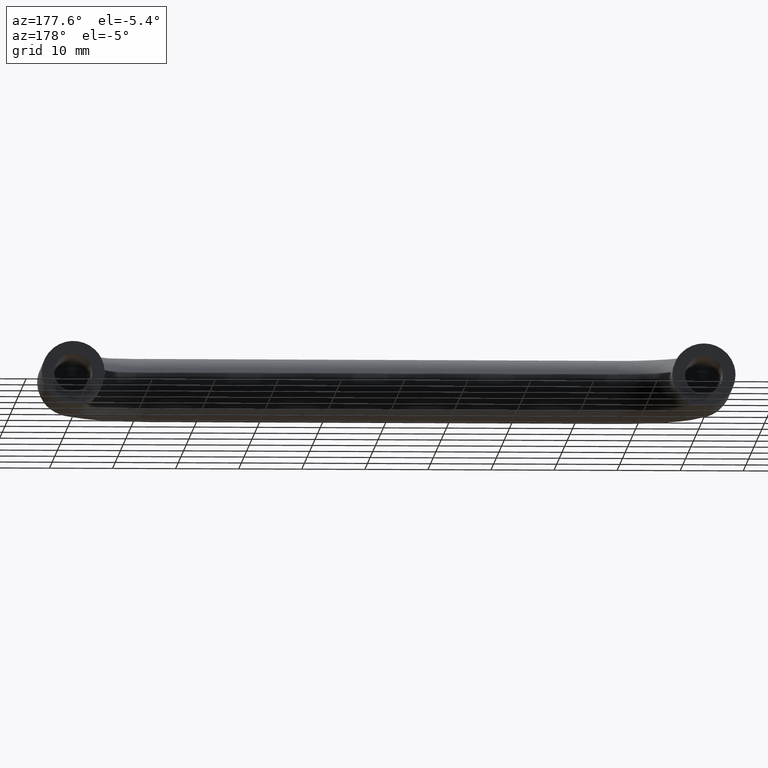
[diagram: clean part render]
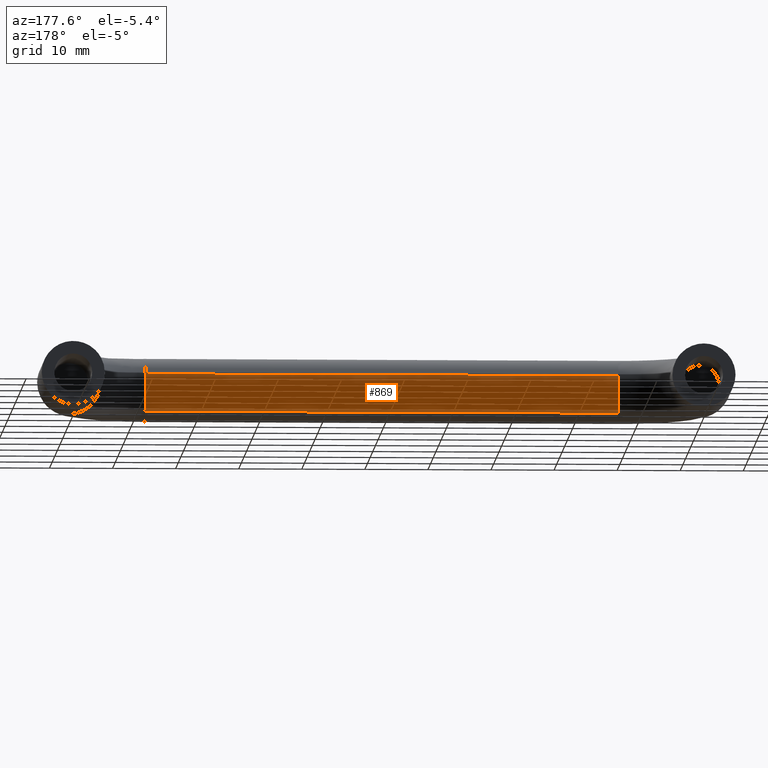
[diagram: same view with one face highlighted and labeled with its STEP entity id]
A machine part, auxiliary view. The second image highlights one B-rep face of the part: STEP entity #869.
In plain terms, the highlighted face is a freeform B-spline surface patch.
Its self-contained STEP definition (entity closure, byte-faithful):
#650=CARTESIAN_POINT('',(87.500000000000000,-25.521972536825938,2.224245948419135));
#651=VERTEX_POINT('',#650);
#669=CARTESIAN_POINT('',(12.499999999942640,-25.521972536863931,2.224245948398652));
#670=VERTEX_POINT('',#669);
#671=CARTESIAN_POINT('',(12.499999999942640,-25.521972536863931,2.224245948398652));
#672=CARTESIAN_POINT('',(87.500000000000000,-25.521972536825938,2.224245948419135));
#673=QUASI_UNIFORM_CURVE('',1,(#671,#672),.UNSPECIFIED.,.F.,.U.);
#674=EDGE_CURVE('',#670,#651,#673,.T.);
#723=CARTESIAN_POINT('',(12.500000000000000,-26.558228211156390,-3.626872889076486));
#724=VERTEX_POINT('',#723);
#740=CARTESIAN_POINT('',(87.500000000089756,-26.558227491804399,-3.626872206390019));
#741=VERTEX_POINT('',#740);
#742=CARTESIAN_POINT('',(12.500000000000000,-26.558228211156390,-3.626872889076486));
#743=CARTESIAN_POINT('',(87.500000000089756,-26.558227491804399,-3.626872206390019));
#744=QUASI_UNIFORM_CURVE('',1,(#742,#743),.UNSPECIFIED.,.F.,.U.);
#745=EDGE_CURVE('',#724,#741,#744,.T.);
#795=CARTESIAN_POINT('',(10.624999999436810,-26.558227121531232,-3.626871855061437));
#796=CARTESIAN_POINT('',(10.624999999436808,-23.878708249008778,-1.084103389193821));
#797=CARTESIAN_POINT('',(10.624999999436806,-25.521972536820858,2.224245948408881));
#798=CARTESIAN_POINT('',(89.421875000305576,-26.558227121531221,-3.626871855061437));
#799=CARTESIAN_POINT('',(89.421875000305576,-23.878708249008763,-1.084103389193821));
#800=CARTESIAN_POINT('',(89.421875000305562,-25.521972536820837,2.224245948408881));
#808=(BOUNDED_SURFACE()B_SPLINE_SURFACE(2,1,((#795,#798),(#796,#799),(#797,#800)),.UNSPECIFIED.,.F.,.F.,.U.)B_SPLINE_SURFACE_WITH_KNOTS((3,3),(2,2),(0.0,6.582243619433233),(0.0,78.796875000868766),.UNSPECIFIED.)GEOMETRIC_REPRESENTATION_ITEM()RATIONAL_B_SPLINE_SURFACE(((1.0,1.0),(0.765685424949238,0.765685424949238),(0.906274169979695,0.906274169979695)))REPRESENTATION_ITEM('')SURFACE());
#809=CARTESIAN_POINT('',(87.500000000000000,-25.0,0.0));
#810=VERTEX_POINT('',#809);
#811=CARTESIAN_POINT('',(87.500000000000000,-25.0,0.0));
#812=CARTESIAN_POINT('',(87.500000000000000,-25.0,1.173369647362118));
#813=CARTESIAN_POINT('',(87.500000000000000,-25.521972536825942,2.224245948419135));
#821=(BOUNDED_CURVE()B_SPLINE_CURVE(2,(#811,#812,#813),.UNSPECIFIED.,.F.,.U.)B_SPLINE_CURVE_WITH_KNOTS((3,3),(0.500000000000000,0.575619190623109),.UNSPECIFIED.)CURVE()GEOMETRIC_REPRESENTATION_ITEM()RATIONAL_B_SPLINE_CURVE((1.0,0.911406607417319,0.876408099967899))REPRESENTATION_ITEM(''));
#822=EDGE_CURVE('',#810,#651,#821,.T.);
#823=ORIENTED_EDGE('',*,*,#822,.F.);
#824=CARTESIAN_POINT('',(87.500000000089756,-26.558227491804399,-3.626872206390019));
#825=CARTESIAN_POINT('',(87.499999999999986,-24.999999999999993,-2.148170134432441));
#826=CARTESIAN_POINT('',(87.500000000000000,-25.0,0.0));
#834=(BOUNDED_CURVE()B_SPLINE_CURVE(2,(#824,#825,#826),.UNSPECIFIED.,.F.,.U.)B_SPLINE_CURVE_WITH_KNOTS((3,3),(0.371049495849150,0.500000000000000),.UNSPECIFIED.)CURVE()GEOMETRIC_REPRESENTATION_ITEM()RATIONAL_B_SPLINE_CURVE((0.853699663650991,0.848925087086560,1.0))REPRESENTATION_ITEM(''));
#835=EDGE_CURVE('',#741,#810,#834,.T.);
#836=ORIENTED_EDGE('',*,*,#835,.F.);
#837=ORIENTED_EDGE('',*,*,#745,.F.);
#838=CARTESIAN_POINT('',(12.500000000000000,-25.0,0.0));
#839=VERTEX_POINT('',#838);
#840=CARTESIAN_POINT('',(12.499999999999996,-26.558228211156390,-3.626872889076486));
#841=CARTESIAN_POINT('',(12.500000000000004,-24.999999999999996,-2.148170419549691));
#842=CARTESIAN_POINT('',(12.500000000000000,-25.0,0.0));
#850=(BOUNDED_CURVE()B_SPLINE_CURVE(2,(#840,#841,#842),.UNSPECIFIED.,.F.,.U.)B_SPLINE_CURVE_WITH_KNOTS((3,3),(0.371049481319765,0.500000000000000),.UNSPECIFIED.)CURVE()GEOMETRIC_REPRESENTATION_ITEM()RATIONAL_B_SPLINE_CURVE((0.853699664726935,0.848925070064327,1.0))REPRESENTATION_ITEM(''));
#851=EDGE_CURVE('',#724,#839,#850,.T.);
#852=ORIENTED_EDGE('',*,*,#851,.T.);
#853=CARTESIAN_POINT('',(12.500000000000000,-25.0,0.0));
#854=CARTESIAN_POINT('',(12.499999999999996,-24.999999999999993,1.173369647337244));
#855=CARTESIAN_POINT('',(12.499999999942638,-25.521972536863931,2.224245948398652));
#863=(BOUNDED_CURVE()B_SPLINE_CURVE(2,(#853,#854,#855),.UNSPECIFIED.,.F.,.U.)B_SPLINE_CURVE_WITH_KNOTS((3,3),(0.500000000000000,0.575619190621647),.UNSPECIFIED.)CURVE()GEOMETRIC_REPRESENTATION_ITEM()RATIONAL_B_SPLINE_CURVE((1.0,0.911406607419031,0.876408099969251))REPRESENTATION_ITEM(''));
#864=EDGE_CURVE('',#839,#670,#863,.T.);
#865=ORIENTED_EDGE('',*,*,#864,.T.);
#866=ORIENTED_EDGE('',*,*,#674,.T.);
#867=EDGE_LOOP('',(#823,#836,#837,#852,#865,#866));
#868=FACE_OUTER_BOUND('',#867,.T.);
#869=ADVANCED_FACE('',(#868),#808,.T.);